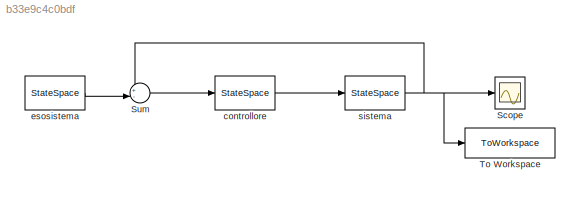
MODEL slx_b33e9c4c0bdf
KIND model
CONFIG AbsTol = auto
CONFIG EnableMultiTasking = off
CONFIG FixedStep = auto
CONFIG MaxStep = auto
CONFIG MinStep = auto
CONFIG RelTol = 1e-3
CONFIG SampleTimeConstraint = Unconstrained
CONFIG SolverName = VariableStepAuto
CONFIG StartTime = 0.0
CONFIG StopTime = 30
BLOCK [Scope] Scope
  Floating = off
  NumInputPorts = 1
  Ports = [1]
  ScopeSpecificationString = Simulink.scopes.TimeScopeBlockCfg('CurrentConfiguration', extmgr.ConfigurationSet(extmgr.Configuration('Core','General UI',true),extmgr.Configuration('Core','Source UI',true),extmgr.Configuration('Sources','WiredSimulink',true),extmgr.Configuration('Visuals','Time Domain',true,'SerializedDisplays',{struct('MinYLimReal','-3.96318','MaxYLimReal','8.45697','YLabelReal','','MinYLimMag','0.00000','MaxY...<+1412ch>
BLOCK [Sum] Sum
  Inputs = +-|
  Ports = [2, 1]
BLOCK [ToWorkspace] To Workspace
  FixptAsFi = on
  MaxDataPoints = inf
  Ports = [1]
  SampleTime = -1
  SaveFormat = Timeseries
  VariableName = simout
BLOCK [StateSpace] controllore
  A = F
  B = G
  C = H
  D = zeros(size(H,1),size(G,2))
  InitialCondition = 0
  Ports = [1, 1]
BLOCK [StateSpace] esosistema
  A = S
  B = zeros(size(S,1))
  C = Q
  D = zeros(size(Q,1),size(S,1))
  InitialCondition = [a1 a2 Angolo_r]
  Ports = [1, 1]
BLOCK [StateSpace] sistema
  A = A
  B = B
  C = C
  D = D
  InitialCondition = [1 0 1 0]
  Ports = [1, 1]
LINE Sum:1 -> controllore:1
LINE controllore:1 -> sistema:1
LINE esosistema:1 -> Sum:2
NET sistema:1 -> Scope:1, Sum:1, To Workspace:1
note: NET lines group one-source signal fan-out (src -> all destinations, sorted); 1:1 wires keep LINE
